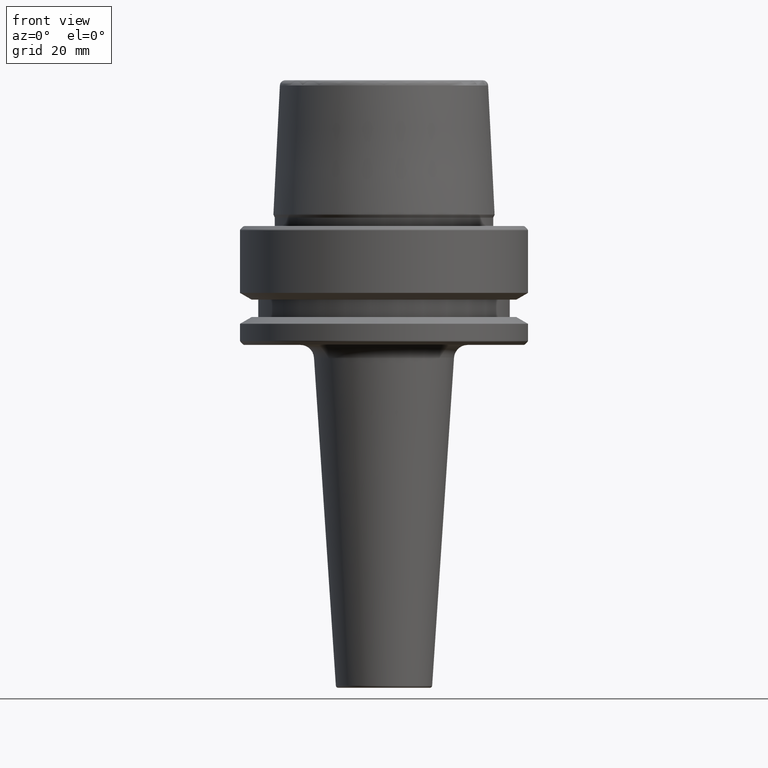
[diagram: clean part render]
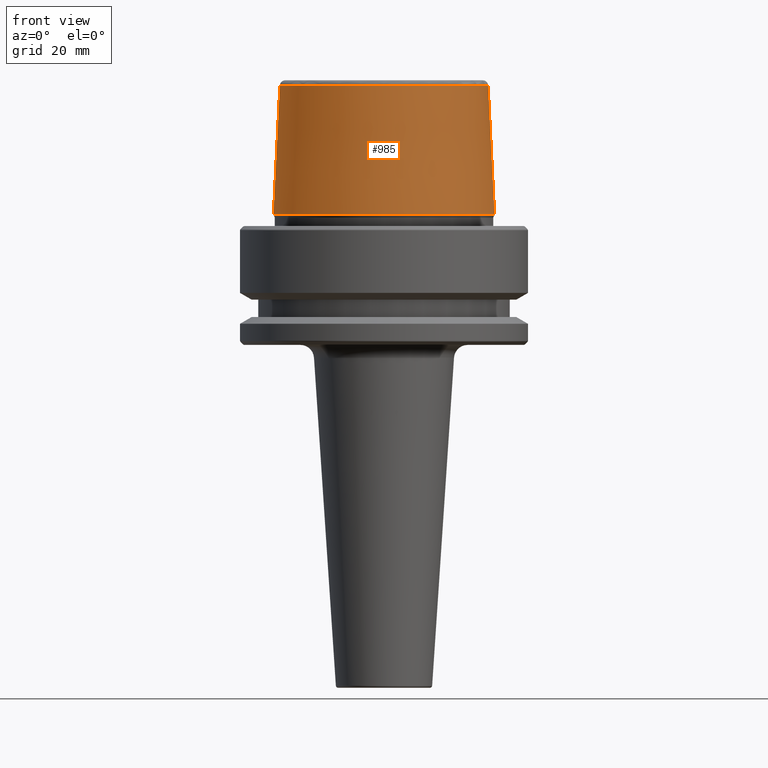
[diagram: same view with one face highlighted and labeled with its STEP entity id]
A machine part, front view. The second image highlights one B-rep face of the part: STEP entity #985.
In plain terms, the highlighted conical surface has half-angle 2.868 deg.
Its self-contained STEP definition (entity closure, byte-faithful):
#21 = AXIS2_PLACEMENT_3D ( 'NONE', #1113, #596, #228 ) ;
#38 = LINE ( 'NONE', #305, #263 ) ;
#96 = CARTESIAN_POINT ( 'NONE',  ( 0.0000000000000000000, 0.0000000000000000000, 2.500000000000002200 ) ) ;
#99 = ORIENTED_EDGE ( 'NONE', *, *, #460, .F. ) ;
#228 = DIRECTION ( 'NONE',  ( 1.000000000000000000, 0.0000000000000000000, 0.0000000000000000000 ) ) ;
#231 = DIRECTION ( 'NONE',  ( -1.000000000000000000, 0.0000000000000000000, 0.0000000000000000000 ) ) ;
#255 = CONICAL_SURFACE ( 'NONE', #745, 24.19537568275369200, 0.05005701257455997400 ) ;
#263 = VECTOR ( 'NONE', #278, 1000.000000000000200 ) ;
#278 = DIRECTION ( 'NONE',  ( 0.05003611051310804400, 6.127656258166099700E-018, -0.9987474093306675200 ) ) ;
#281 = CARTESIAN_POINT ( 'NONE',  ( -24.19537568275369200, 2.963078938405201500E-015, 2.500000000000002200 ) ) ;
#305 = CARTESIAN_POINT ( 'NONE',  ( 24.19537568275369200, 2.963078938405201500E-015, 2.500000000000002200 ) ) ;
#316 = LINE ( 'NONE', #341, #545 ) ;
#341 = CARTESIAN_POINT ( 'NONE',  ( -24.19537568275369200, 0.0000000000000000000, 2.500000000000002200 ) ) ;
#343 = VERTEX_POINT ( 'NONE', #281 ) ;
#361 = CIRCLE ( 'NONE', #851, 24.19537568275369200 ) ;
#460 = EDGE_CURVE ( 'NONE', #623, #1073, #38, .T. ) ;
#530 = ORIENTED_EDGE ( 'NONE', *, *, #1150, .T. ) ;
#545 = VECTOR ( 'NONE', #903, 1000.000000000000200 ) ;
#571 = ORIENTED_EDGE ( 'NONE', *, *, #1059, .F. ) ;
#596 = DIRECTION ( 'NONE',  ( -0.0000000000000000000, -0.0000000000000000000, 1.000000000000000000 ) ) ;
#599 = DIRECTION ( 'NONE',  ( 1.000000000000000000, 0.0000000000000000000, 0.0000000000000000000 ) ) ;
#621 = CARTESIAN_POINT ( 'NONE',  ( 0.0000000000000000000, 0.0000000000000000000, 2.500000000000002200 ) ) ;
#623 = VERTEX_POINT ( 'NONE', #1095 ) ;
#677 = DIRECTION ( 'NONE',  ( 0.0000000000000000000, 0.0000000000000000000, -1.000000000000000000 ) ) ;
#692 = EDGE_LOOP ( 'NONE', ( #99, #571, #820, #530 ) ) ;
#745 = AXIS2_PLACEMENT_3D ( 'NONE', #621, #677, #231 ) ;
#806 = FACE_OUTER_BOUND ( 'NONE', #692, .T. ) ;
#808 = VERTEX_POINT ( 'NONE', #1020 ) ;
#820 = ORIENTED_EDGE ( 'NONE', *, *, #982, .T. ) ;
#851 = AXIS2_PLACEMENT_3D ( 'NONE', #96, #941, #599 ) ;
#903 = DIRECTION ( 'NONE',  ( -0.05003611051310804400, 0.0000000000000000000, -0.9987474093306675200 ) ) ;
#937 = CARTESIAN_POINT ( 'NONE',  ( 24.19537568275369200, 0.0000000000000000000, 2.500000000000002200 ) ) ;
#941 = DIRECTION ( 'NONE',  ( -0.0000000000000000000, -0.0000000000000000000, 1.000000000000000000 ) ) ;
#982 = EDGE_CURVE ( 'NONE', #808, #343, #316, .T. ) ;
#985 = ADVANCED_FACE ( 'NONE', ( #806 ), #255, .T. ) ;
#1020 = CARTESIAN_POINT ( 'NONE',  ( -22.77957961851797100, 0.0000000000000000000, 30.76004333261571900 ) ) ;
#1059 = EDGE_CURVE ( 'NONE', #808, #623, #1223, .T. ) ;
#1073 = VERTEX_POINT ( 'NONE', #937 ) ;
#1095 = CARTESIAN_POINT ( 'NONE',  ( 22.77957961851797100, 2.876386432489616700E-015, 30.76004333261571900 ) ) ;
#1113 = CARTESIAN_POINT ( 'NONE',  ( 0.0000000000000000000, 0.0000000000000000000, 30.76004333261571900 ) ) ;
#1150 = EDGE_CURVE ( 'NONE', #343, #1073, #361, .T. ) ;
#1223 = CIRCLE ( 'NONE', #21, 22.77957961851797100 ) ;